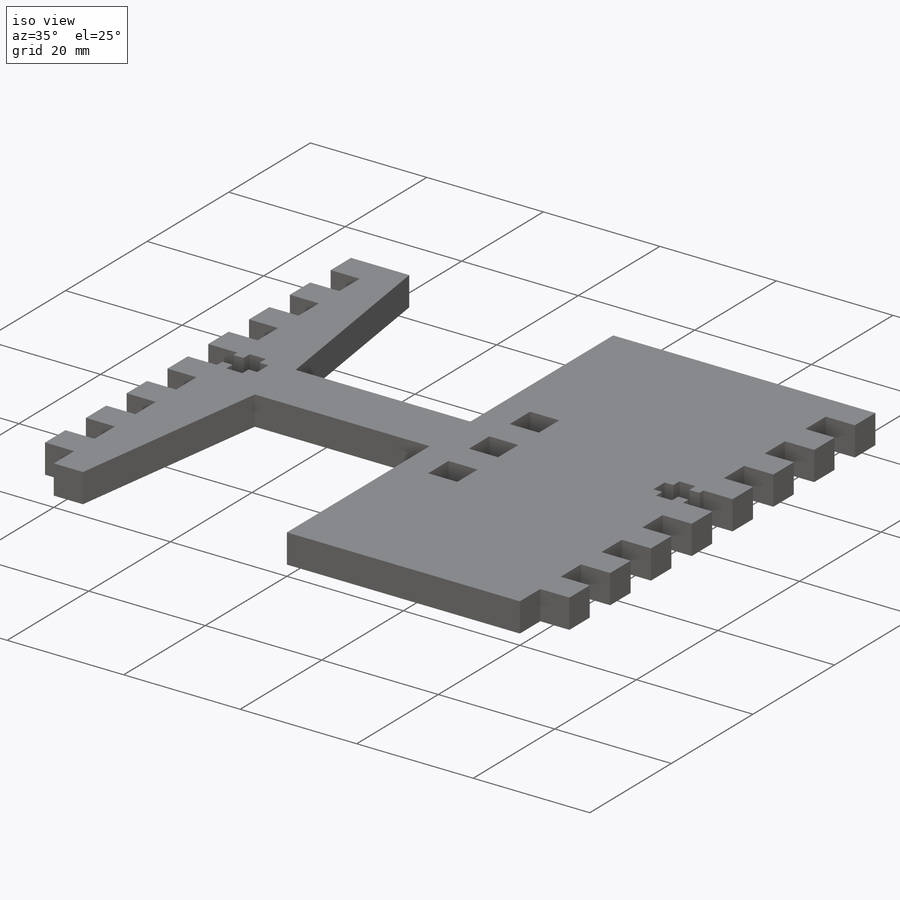
[diagram: iso view]
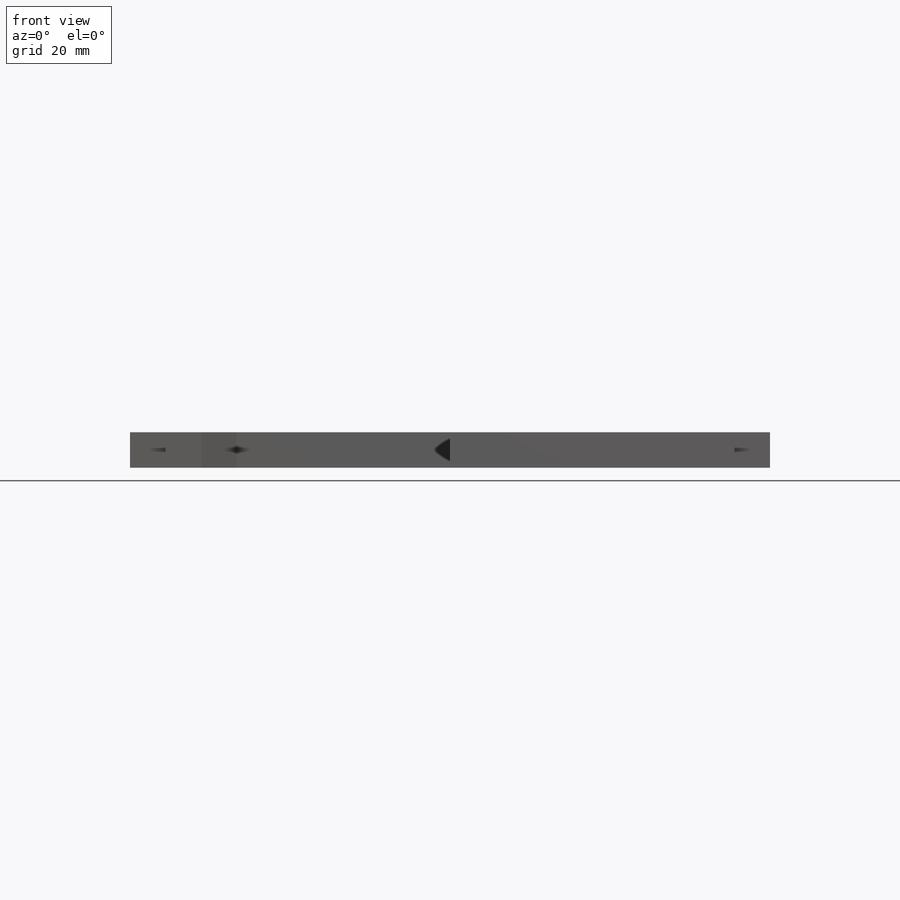
[diagram: front view]
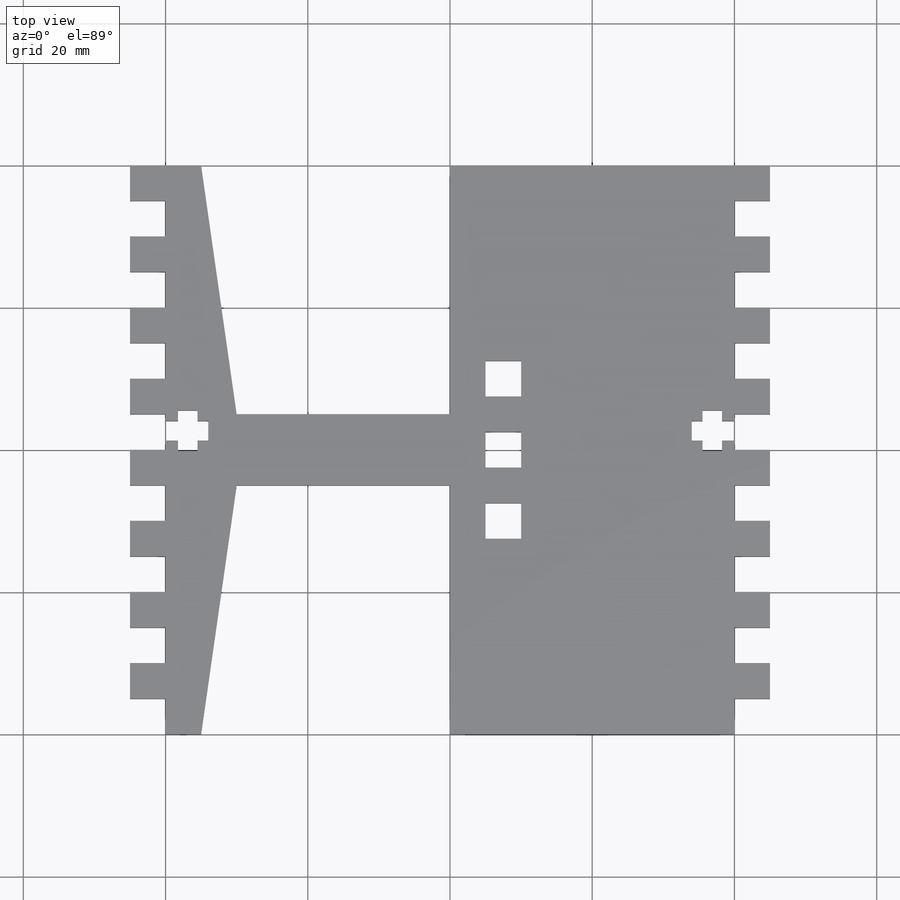
[diagram: top view]
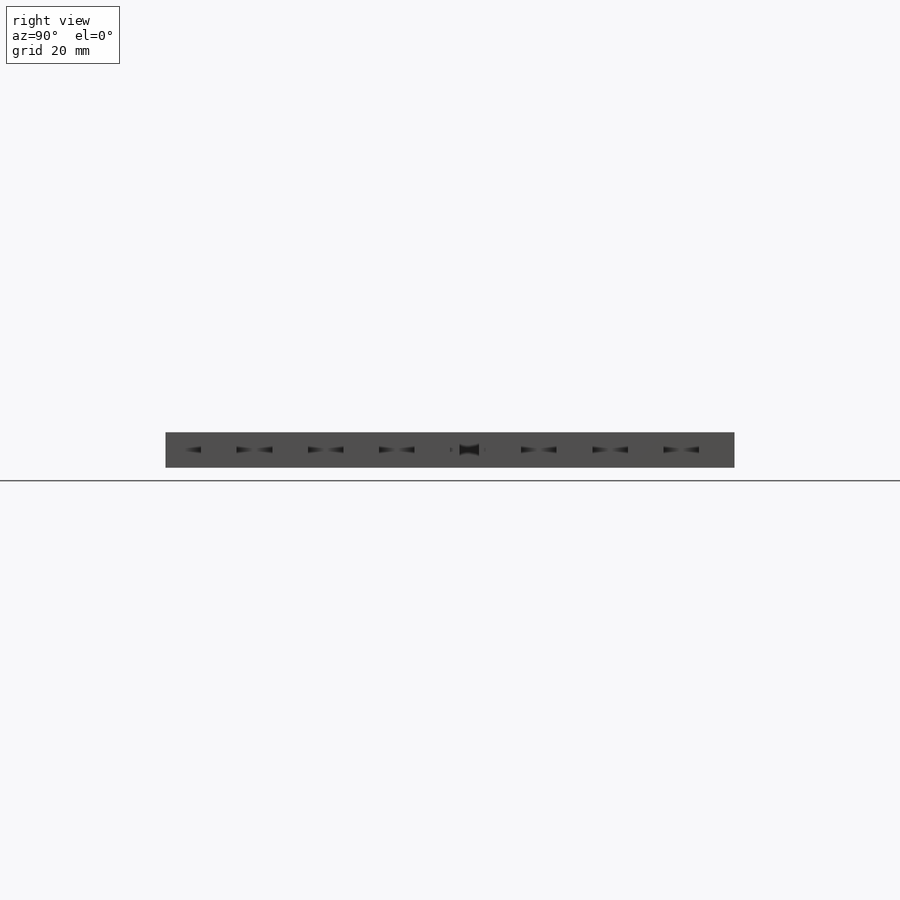
[diagram: right view]
SOLIDWORKS PART (.sldprt)
format: sldprt  version: not decoded by parser v0  size: 519,680 bytes
history: native  units: mm
features: sketch x5, plane x3, cut_extrude x3, extrude x2, pattern_linear x2, material x1, mirror x1 (+10 scaffold rows collapsed)
feature tree (27):
  scaffold x10  (default folders/planes/origin — collapsed)
  material  "Balsa"
  plane  "Plan de face"
  plane  "Plan de dessus"
  plane  "Plan de droite"
  sketch  "Esquisse1"  dims[D1=80.0mm D2=80.0mm D3=40.0mm D4=40.0mm]
  extrude  "Boss.-Extru.1"  Depth=5mm
  sketch  "Esquisse2"  dims[D1=5.0mm D2=5.0mm]
  extrude  "Boss.-Extru.2"  Depth=5mm
  pattern_linear  "Répétition linéaire1"  Count1=2 Count2=8 Spacing1=85mm Spacing2=10mm
  sketch  "Esquisse3"  dims[D1=2.75mm D2=1.5mm D3=1.5mm D4=1.5mm D5=2.75mm D6=1.75mm D7=2.75mm D8=6.0mm D9=1.75mm D10=2.75mm D11=11.3mm]
  cut_extrude  "Enlèv. mat.-Extru.1"  Depth=10mm
  sketch  "Esquisse7"  dims[c1.D1=10.0mm c1.D2=10.0mm c1.D3=20.0mm c1.D4=10.0mm c1.D5=10.0mm c1.D6=35.0mm c2.D4=0.0mm c2.D5=30.0mm c2.D7=35.0mm c2.D8=30.0mm c3.D7=35.0mm c3.D1=10.0mm c3.D2=5.35mm c4.D1=40.0mm c4.D2=40.0mm c4.D3=10.0mm]
  sketch  "Esquisse9"  dims[D1=5.0mm D2=5.0mm D3=10.0mm D4=2.5mm D5=2.5mm]
  cut_extrude  "Enlèv. mat.-Extru.6"  Depth=10mm
  pattern_linear  "Répétition linéaire4"  Count1=2 Count2=2 Spacing1=10mm Spacing2=10mm
  mirror  "Symétrie3"
  cut_extrude  "Enlèv. mat.-Extru.7"  Depth=10mm
decode coverage: 12 of 13 modeling features carry decoded parameters
note: suppression state not decoded; provenance and decode notes live in map.json
